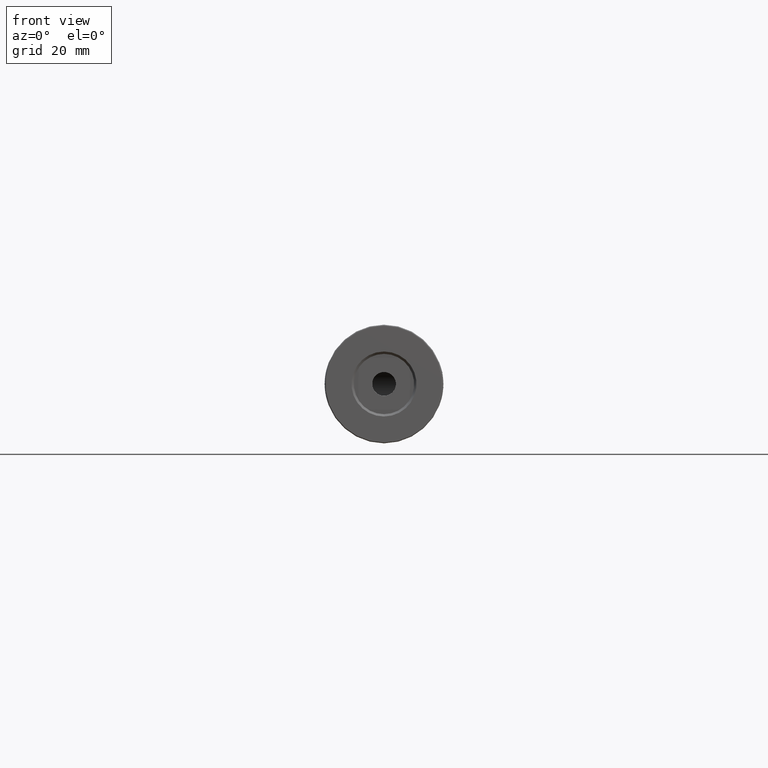
[diagram: clean part render]
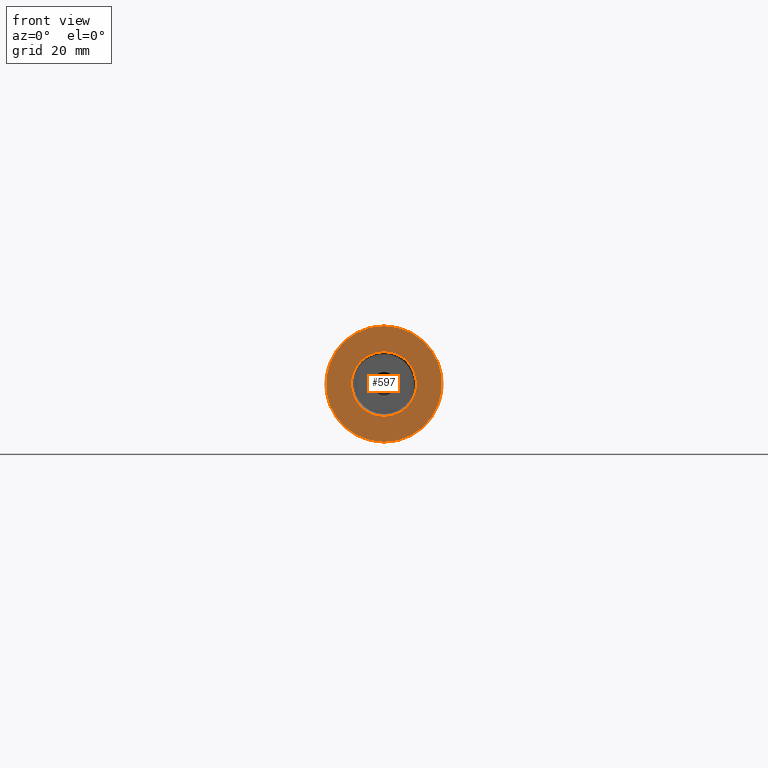
[diagram: same view with one face highlighted and labeled with its STEP entity id]
A machine part, front view. The second image highlights one B-rep face of the part: STEP entity #597.
In plain terms, the highlighted planar face has unit normal (0, 1, 0).
Its self-contained STEP definition (entity closure, byte-faithful):
#97 = CIRCLE ( 'NONE', #2093, 6.850000000000022737 ) ;
#123 = CARTESIAN_POINT ( 'NONE',  ( -22.50520183104453409, -73.60174781523060972, 50.00000000000000000 ) ) ;
#283 = ORIENTED_EDGE ( 'NONE', *, *, #2632, .T. ) ;
#291 = FACE_OUTER_BOUND ( 'NONE', #2458, .T. ) ;
#365 = AXIS2_PLACEMENT_3D ( 'NONE', #1095, #558, #2468 ) ;
#441 = CARTESIAN_POINT ( 'NONE',  ( -22.50520183104453409, -73.60174781523060972, 37.75000000000000711 ) ) ;
#444 = DIRECTION ( 'NONE',  ( 0.0000000000000000000, 1.000000000000000000, 0.0000000000000000000 ) ) ;
#546 = ORIENTED_EDGE ( 'NONE', *, *, #1046, .T. ) ;
#558 = DIRECTION ( 'NONE',  ( -0.0000000000000000000, -1.000000000000000000, -0.0000000000000000000 ) ) ;
#597 = ADVANCED_FACE ( 'NONE', ( #291, #780 ), #2390, .F. ) ;
#605 = ORIENTED_EDGE ( 'NONE', *, *, #2449, .T. ) ;
#708 = DIRECTION ( 'NONE',  ( 0.0000000000000000000, 0.0000000000000000000, 1.000000000000000000 ) ) ;
#780 = FACE_BOUND ( 'NONE', #3420, .T. ) ;
#828 = CARTESIAN_POINT ( 'NONE',  ( -22.50520183104453409, -73.60174781523060972, 50.00000000000000000 ) ) ;
#864 = AXIS2_PLACEMENT_3D ( 'NONE', #828, #2144, #1351 ) ;
#974 = VERTEX_POINT ( 'NONE', #2167 ) ;
#1046 = EDGE_CURVE ( 'NONE', #1261, #3203, #2994, .T. ) ;
#1095 = CARTESIAN_POINT ( 'NONE',  ( -22.50520183104453409, -73.60174781523060972, 50.00000000000000000 ) ) ;
#1143 = AXIS2_PLACEMENT_3D ( 'NONE', #123, #3148, #708 ) ;
#1261 = VERTEX_POINT ( 'NONE', #1731 ) ;
#1351 = DIRECTION ( 'NONE',  ( 0.0000000000000000000, -0.0000000000000000000, 1.000000000000000000 ) ) ;
#1677 = DIRECTION ( 'NONE',  ( 0.0000000000000000000, 1.000000000000000000, 0.0000000000000000000 ) ) ;
#1731 = CARTESIAN_POINT ( 'NONE',  ( -22.50520183104453409, -73.60174781523060972, 62.25000000000000000 ) ) ;
#1766 = CARTESIAN_POINT ( 'NONE',  ( -22.50520183104453409, -73.60174781523060972, 56.85000000000002274 ) ) ;
#1818 = ORIENTED_EDGE ( 'NONE', *, *, #1931, .T. ) ;
#1931 = EDGE_CURVE ( 'NONE', #3203, #1261, #2041, .T. ) ;
#2041 = CIRCLE ( 'NONE', #1143, 12.24999999999999645 ) ;
#2093 = AXIS2_PLACEMENT_3D ( 'NONE', #3421, #444, #2364 ) ;
#2144 = DIRECTION ( 'NONE',  ( 0.0000000000000000000, 1.000000000000000000, 0.0000000000000000000 ) ) ;
#2167 = CARTESIAN_POINT ( 'NONE',  ( -22.50520183104453409, -73.60174781523060972, 43.14999999999997726 ) ) ;
#2364 = DIRECTION ( 'NONE',  ( 0.0000000000000000000, 0.0000000000000000000, 1.000000000000000000 ) ) ;
#2390 = PLANE ( 'NONE',  #864 ) ;
#2449 = EDGE_CURVE ( 'NONE', #3185, #974, #97, .T. ) ;
#2451 = CARTESIAN_POINT ( 'NONE',  ( -22.50520183104453409, -73.60174781523060972, 50.00000000000000000 ) ) ;
#2458 = EDGE_LOOP ( 'NONE', ( #546, #1818 ) ) ;
#2468 = DIRECTION ( 'NONE',  ( 0.0000000000000000000, 0.0000000000000000000, 1.000000000000000000 ) ) ;
#2632 = EDGE_CURVE ( 'NONE', #974, #3185, #3443, .T. ) ;
#2994 = CIRCLE ( 'NONE', #365, 12.24999999999999645 ) ;
#3054 = DIRECTION ( 'NONE',  ( 0.0000000000000000000, 0.0000000000000000000, 1.000000000000000000 ) ) ;
#3148 = DIRECTION ( 'NONE',  ( -0.0000000000000000000, -1.000000000000000000, -0.0000000000000000000 ) ) ;
#3185 = VERTEX_POINT ( 'NONE', #1766 ) ;
#3203 = VERTEX_POINT ( 'NONE', #441 ) ;
#3214 = AXIS2_PLACEMENT_3D ( 'NONE', #2451, #1677, #3054 ) ;
#3420 = EDGE_LOOP ( 'NONE', ( #283, #605 ) ) ;
#3421 = CARTESIAN_POINT ( 'NONE',  ( -22.50520183104453409, -73.60174781523060972, 50.00000000000000000 ) ) ;
#3443 = CIRCLE ( 'NONE', #3214, 6.850000000000022737 ) ;